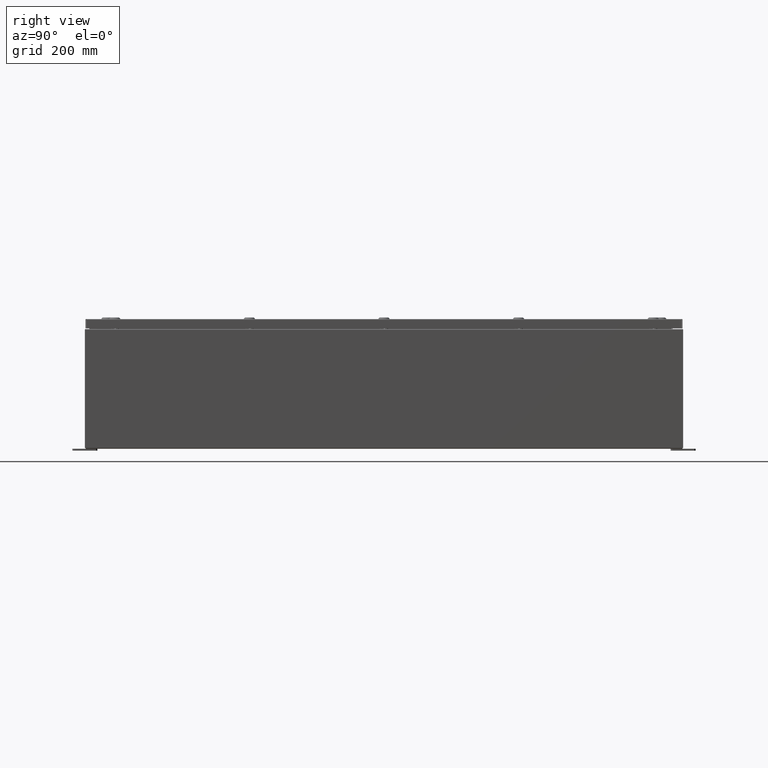
[diagram: clean part render]
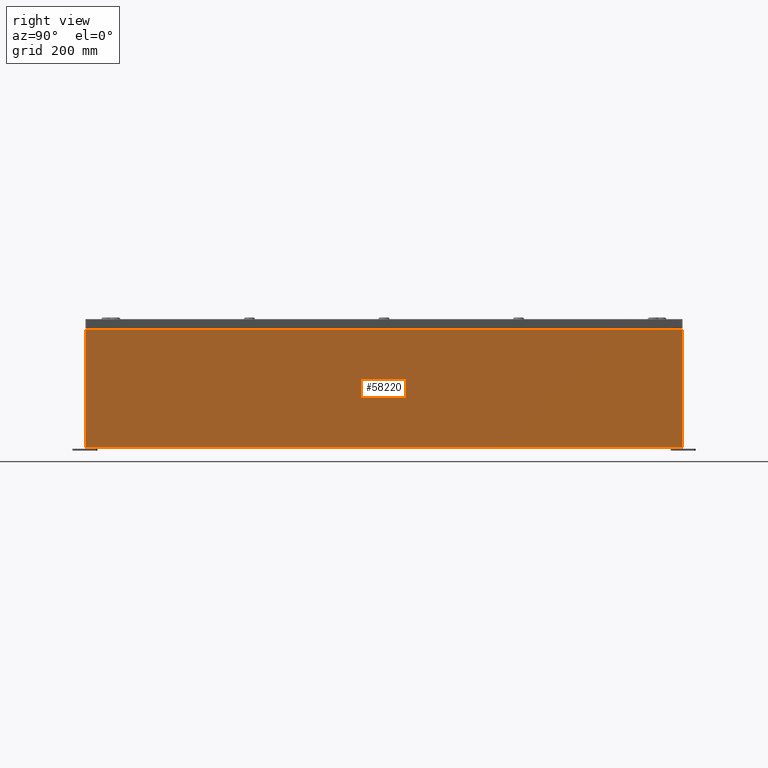
[diagram: same view with one face highlighted and labeled with its STEP entity id]
A machine part, right view. The second image highlights one B-rep face of the part: STEP entity #58220.
In plain terms, the highlighted planar face has unit normal (-1, 0, 0).
Its self-contained STEP definition (entity closure, byte-faithful):
#1886 = ORIENTED_EDGE ( 'NONE', *, *, #55420, .T. ) ;
#3101 = DIRECTION ( 'NONE',  ( -1.000000000000000000, 0.0000000000000000000, 3.482016343714355100E-015 ) ) ;
#3745 = EDGE_LOOP ( 'NONE', ( #1886, #35552, #33628, #30290 ) ) ;
#7827 = VECTOR ( 'NONE', #41854, 39.37007874015748100 ) ;
#9565 = VERTEX_POINT ( 'NONE', #17923 ) ;
#11937 = VERTEX_POINT ( 'NONE', #44424 ) ;
#13746 = CARTESIAN_POINT ( 'NONE',  ( 18.00000000000003900, -29.92530000000001100, 11.83760000000000000 ) ) ;
#13967 = VECTOR ( 'NONE', #26435, 39.37007874015748100 ) ;
#15459 = CARTESIAN_POINT ( 'NONE',  ( 17.99999999999999600, 29.92529999999998900, -6.293710784286996200E-014 ) ) ;
#15878 = CARTESIAN_POINT ( 'NONE',  ( 17.99999999999999600, -29.92530000000001100, 0.01299999999999984700 ) ) ;
#16475 = DIRECTION ( 'NONE',  ( -0.0000000000000000000, -1.000000000000000000, -0.0000000000000000000 ) ) ;
#17923 = CARTESIAN_POINT ( 'NONE',  ( 17.99999999999999600, 29.92529999999999300, 0.01299999999999984700 ) ) ;
#19058 = LINE ( 'NONE', #15878, #13967 ) ;
#24484 = CARTESIAN_POINT ( 'NONE',  ( 17.99999999999999600, 0.0000000000000000000, -6.293710784286996200E-014 ) ) ;
#26172 = EDGE_CURVE ( 'NONE', #9565, #31988, #63006, .T. ) ;
#26435 = DIRECTION ( 'NONE',  ( -0.0000000000000000000, -1.000000000000000000, -0.0000000000000000000 ) ) ;
#26606 = VECTOR ( 'NONE', #52504, 39.37007874015748100 ) ;
#30290 = ORIENTED_EDGE ( 'NONE', *, *, #26172, .T. ) ;
#31988 = VERTEX_POINT ( 'NONE', #42980 ) ;
#32178 = FACE_OUTER_BOUND ( 'NONE', #3745, .T. ) ;
#32373 = CARTESIAN_POINT ( 'NONE',  ( 18.00000000000003900, 29.92529999999999300, 11.83760000000000000 ) ) ;
#33628 = ORIENTED_EDGE ( 'NONE', *, *, #44642, .F. ) ;
#35552 = ORIENTED_EDGE ( 'NONE', *, *, #62543, .T. ) ;
#40567 = DIRECTION ( 'NONE',  ( 3.482016343714355100E-015, 0.0000000000000000000, 1.000000000000000000 ) ) ;
#40817 = LINE ( 'NONE', #68325, #26606 ) ;
#41854 = DIRECTION ( 'NONE',  ( 3.482016343714355500E-015, 0.0000000000000000000, 1.000000000000000000 ) ) ;
#42980 = CARTESIAN_POINT ( 'NONE',  ( 18.00000000000003900, 29.92529999999999300, 11.83760000000000000 ) ) ;
#44424 = CARTESIAN_POINT ( 'NONE',  ( 17.99999999999999600, -29.92530000000001100, 0.01299999999999984700 ) ) ;
#44642 = EDGE_CURVE ( 'NONE', #9565, #11937, #19058, .T. ) ;
#46571 = VECTOR ( 'NONE', #16475, 39.37007874015748100 ) ;
#52504 = DIRECTION ( 'NONE',  ( -3.482016343714355500E-015, 0.0000000000000000000, -1.000000000000000000 ) ) ;
#52808 = AXIS2_PLACEMENT_3D ( 'NONE', #24484, #3101, #40567 ) ;
#55420 = EDGE_CURVE ( 'NONE', #31988, #67542, #60836, .T. ) ;
#58220 = ADVANCED_FACE ( 'NONE', ( #32178 ), #66946, .F. ) ;
#60836 = LINE ( 'NONE', #32373, #46571 ) ;
#62543 = EDGE_CURVE ( 'NONE', #67542, #11937, #40817, .T. ) ;
#63006 = LINE ( 'NONE', #15459, #7827 ) ;
#66946 = PLANE ( 'NONE',  #52808 ) ;
#67542 = VERTEX_POINT ( 'NONE', #13746 ) ;
#68325 = CARTESIAN_POINT ( 'NONE',  ( 17.99999999999999600, -29.92530000000001100, -6.293710784286996200E-014 ) ) ;